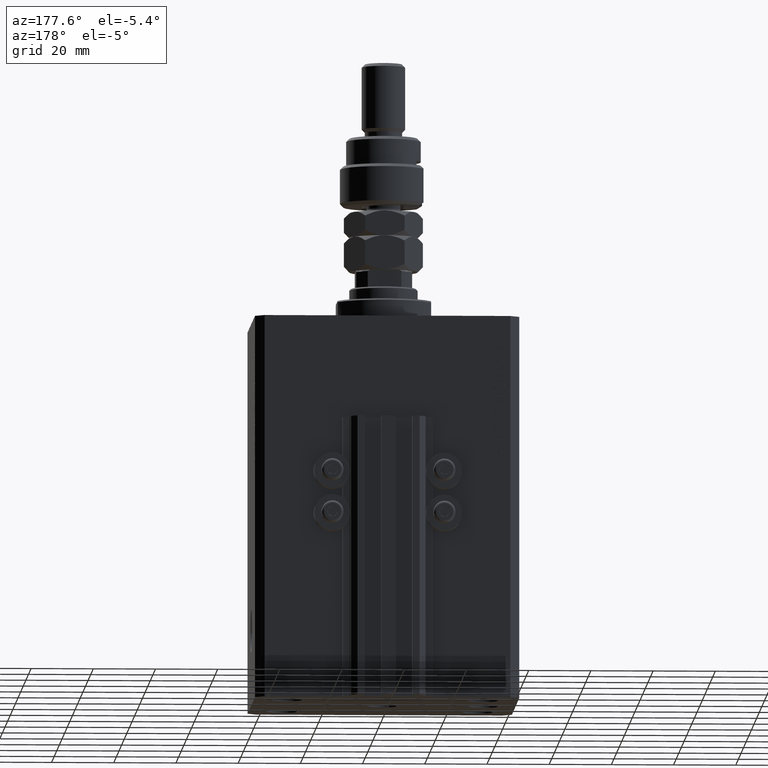
[diagram: clean part render]
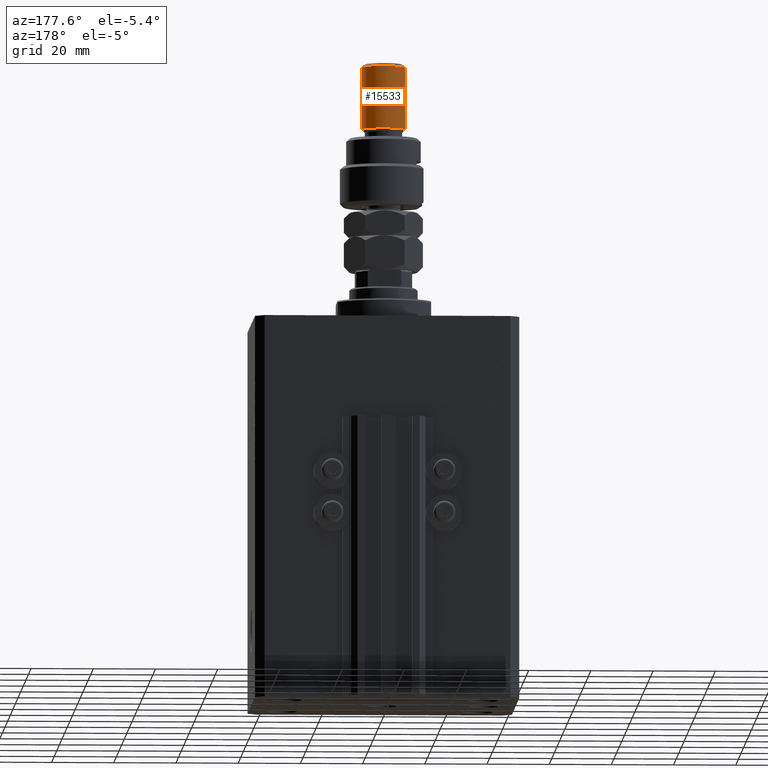
[diagram: same view with one face highlighted and labeled with its STEP entity id]
A machine part, auxiliary view. The second image highlights one B-rep face of the part: STEP entity #15533.
In plain terms, the highlighted cylindrical surface (edge-blend (fillet) strip) has radius 7 mm, axis along (-0, -0, -1).
Its self-contained STEP definition (entity closure, byte-faithful):
#4530 = CARTESIAN_POINT ( 'NONE',  ( 0.000000000000000000, 0.000000000000000000, 44.99999999999999289 ) ) ;
#5347 = CARTESIAN_POINT ( 'NONE',  ( 7.000000000000000000, 8.572527594031473190E-16, 24.99999999999998934 ) ) ;
#8507 = EDGE_CURVE ( 'NONE', #24689, #15564, #26125, .T. ) ;
#9118 = DIRECTION ( 'NONE',  ( 1.000000000000000000, 0.000000000000000000, 0.000000000000000000 ) ) ;
#9563 = AXIS2_PLACEMENT_3D ( 'NONE', #37026, #33484, #26379 ) ;
#10444 = CARTESIAN_POINT ( 'NONE',  ( -7.000000000000000000, 0.000000000000000000, 24.99999999999998934 ) ) ;
#12457 = CYLINDRICAL_SURFACE ( 'NONE', #14847, 7.000000000000000000 ) ;
#13612 = CIRCLE ( 'NONE', #48457, 7.000000000000000000 ) ;
#14037 = ORIENTED_EDGE ( 'NONE', *, *, #29779, .F. ) ;
#14847 = AXIS2_PLACEMENT_3D ( 'NONE', #31973, #35278, #16780 ) ;
#15533 = ADVANCED_FACE ( 'NONE', ( #19807 ), #12457, .T. ) ;
#15564 = VERTEX_POINT ( 'NONE', #5347 ) ;
#16780 = DIRECTION ( 'NONE',  ( -1.000000000000000000, 0.000000000000000000, 0.000000000000000000 ) ) ;
#18624 = CARTESIAN_POINT ( 'NONE',  ( -7.000000000000000000, 0.000000000000000000, 44.99999999999999289 ) ) ;
#19807 = FACE_OUTER_BOUND ( 'NONE', #43043, .T. ) ;
#20025 = VERTEX_POINT ( 'NONE', #10444 ) ;
#20988 = CARTESIAN_POINT ( 'NONE',  ( -7.000000000000000000, 0.000000000000000000, 46.00000000000000000 ) ) ;
#23048 = DIRECTION ( 'NONE',  ( -0.000000000000000000, -0.000000000000000000, -1.000000000000000000 ) ) ;
#24689 = VERTEX_POINT ( 'NONE', #49646 ) ;
#24953 = ORIENTED_EDGE ( 'NONE', *, *, #8507, .T. ) ;
#26125 = LINE ( 'NONE', #42082, #43835 ) ;
#26379 = DIRECTION ( 'NONE',  ( 1.000000000000000000, 0.000000000000000000, 0.000000000000000000 ) ) ;
#29779 = EDGE_CURVE ( 'NONE', #33870, #20025, #33156, .T. ) ;
#31973 = CARTESIAN_POINT ( 'NONE',  ( 0.000000000000000000, 0.000000000000000000, 46.00000000000000000 ) ) ;
#33156 = LINE ( 'NONE', #20988, #34937 ) ;
#33484 = DIRECTION ( 'NONE',  ( -0.000000000000000000, -0.000000000000000000, 1.000000000000000000 ) ) ;
#33870 = VERTEX_POINT ( 'NONE', #18624 ) ;
#34656 = CIRCLE ( 'NONE', #9563, 7.000000000000000000 ) ;
#34937 = VECTOR ( 'NONE', #37452, 1000.000000000000000 ) ;
#35037 = EDGE_CURVE ( 'NONE', #15564, #20025, #34656, .T. ) ;
#35278 = DIRECTION ( 'NONE',  ( -0.000000000000000000, -0.000000000000000000, -1.000000000000000000 ) ) ;
#35571 = ORIENTED_EDGE ( 'NONE', *, *, #48976, .T. ) ;
#35742 = DIRECTION ( 'NONE',  ( 0.000000000000000000, 0.000000000000000000, -1.000000000000000000 ) ) ;
#37026 = CARTESIAN_POINT ( 'NONE',  ( 0.000000000000000000, 0.000000000000000000, 24.99999999999998934 ) ) ;
#37452 = DIRECTION ( 'NONE',  ( -0.000000000000000000, -0.000000000000000000, -1.000000000000000000 ) ) ;
#42082 = CARTESIAN_POINT ( 'NONE',  ( 7.000000000000000000, 8.572527594031473190E-16, 46.00000000000000000 ) ) ;
#43043 = EDGE_LOOP ( 'NONE', ( #35571, #24953, #44136, #14037 ) ) ;
#43835 = VECTOR ( 'NONE', #23048, 1000.000000000000000 ) ;
#44136 = ORIENTED_EDGE ( 'NONE', *, *, #35037, .T. ) ;
#48457 = AXIS2_PLACEMENT_3D ( 'NONE', #4530, #35742, #9118 ) ;
#48976 = EDGE_CURVE ( 'NONE', #33870, #24689, #13612, .T. ) ;
#49646 = CARTESIAN_POINT ( 'NONE',  ( 7.000000000000000000, 8.572527594031473190E-16, 44.99999999999999289 ) ) ;